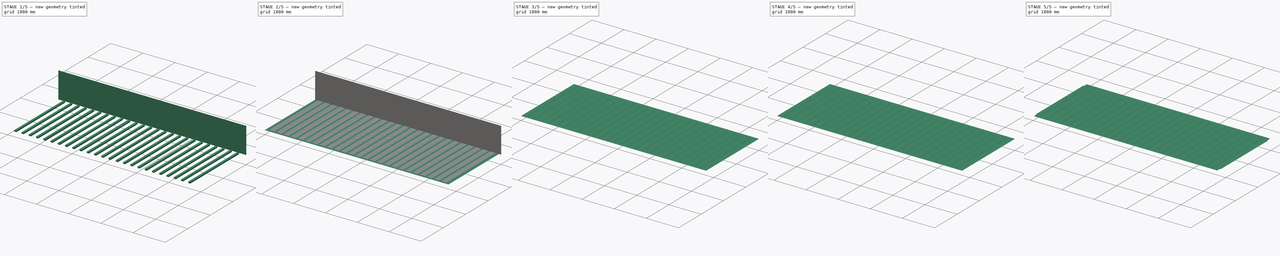
[diagram: build sequence overview — one tinted view per stage of 5, left to right]
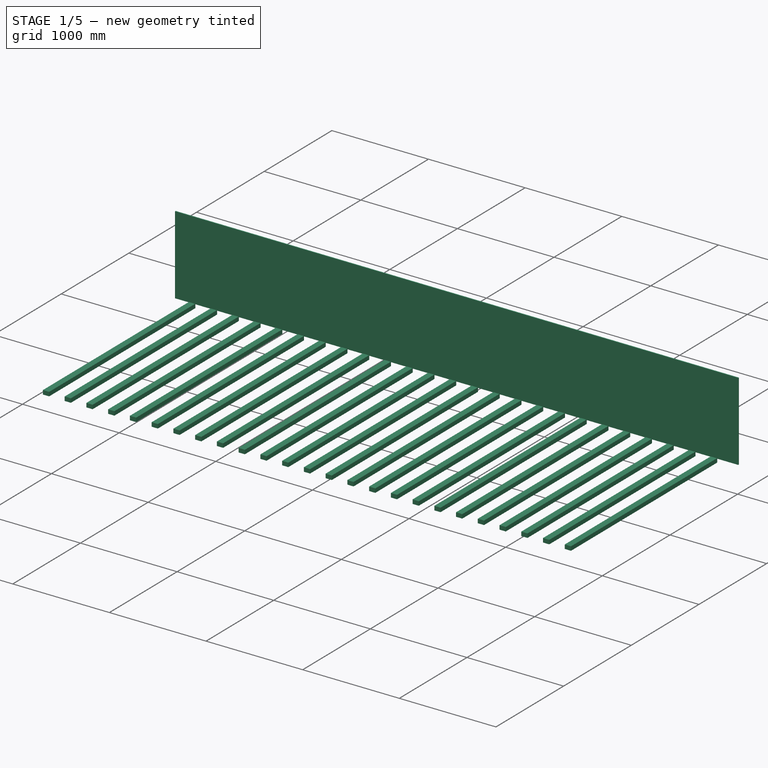
[diagram: stage 1 of 5 — iso view after this stage's code; geometry added in this stage tinted green]
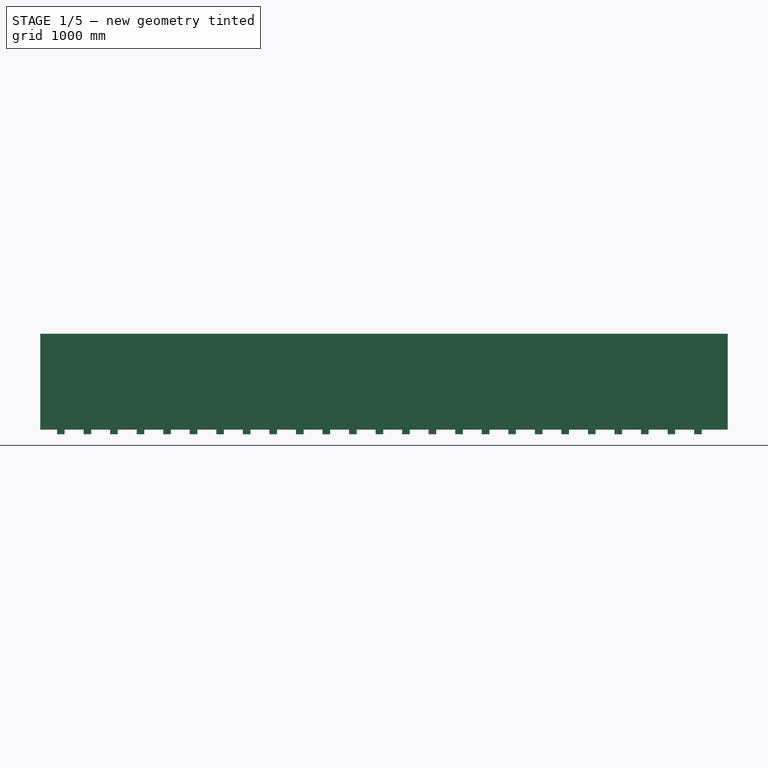
[diagram: stage 1 of 5 — front view after this stage's code; geometry added in this stage tinted green]
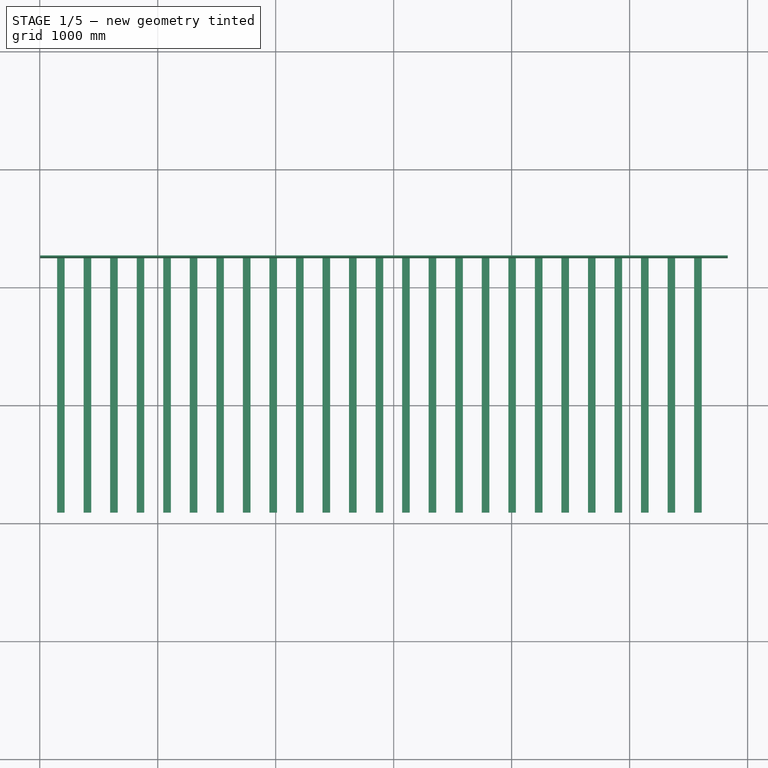
[diagram: stage 1 of 5 — top view after this stage's code; geometry added in this stage tinted green]
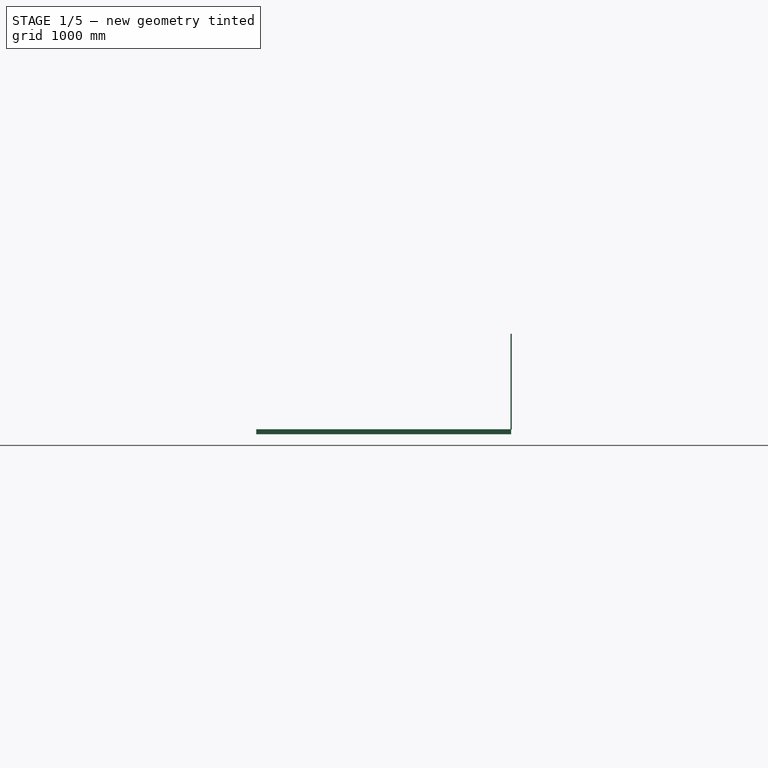
[diagram: stage 1 of 5 — right view after this stage's code; geometry added in this stage tinted green]
FCSTD DOCUMENT  (FreeCAD 0.18R4 (GitTag))
Label: wall_top
License: All rights reserved
LicenseURL: http://en.wikipedia.org/wiki/All_rights_reserved
objects: Sketcher::SketchObject×5, PartDesign::Fillet×5, PartDesign::Pad×4, PartDesign::LinearPattern×2, PartDesign::Draft×2, PartDesign::Body×2, PartDesign::Boolean×1, PartDesign::Pocket×1
note: 27 computed .brp shape members not serialized (recipe doc carries the construction recipe); baked Part::Feature solids carry a one-line shape summary decoded from their .brp

FEATURE [Sketcher::SketchObject] Sketch002
  MapMode = 5
  Support = -> [XY_Plane001]
  sketch-geometry (4):
    g0: LineSegment StartX=146.803 StartY=92.803 StartZ=0 EndX=211.196 EndY=92.803 EndZ=0
    g1: LineSegment StartX=211.196 StartY=92.803 StartZ=0 EndX=211.196 EndY=2253.2 EndZ=0
    g2: LineSegment StartX=211.196 StartY=2253.2 StartZ=0 EndX=146.803 EndY=2253.2 EndZ=0
    g3: LineSegment StartX=146.803 StartY=2253.2 StartZ=0 EndX=146.803 EndY=92.803 EndZ=0
  constraints (12):
    c: Coincident(g0,g1)
    c: Coincident(g1,g2)
    c: Coincident(g2,g3)
    c: Coincident(g3,g0)
    c: Horizontal(g0)
    c: Horizontal(g2)
    c: Vertical(g1)
    c: Vertical(g3)
    c: DistanceY(g1,g1) = 2160.39
    c: DistanceX(g2,g2) = 64.393
    c: DistanceX(g-1,g0) = 146.803
    c: DistanceY(g-1,g0) = 92.803
FEATURE [PartDesign::Pad] Pad002
  Length = 10
  Length2 = 32
  Profile = -> Sketch002
  Refine = true
  Reversed = true
  Type = 4
FEATURE [Sketcher::SketchObject] Sketch003
  ExternalGeometry = -> [Pad002]
  MapMode = 5
  Placement = pos=(0,2253.2,0) rot=(0,0.707107,0.707107;3.14159rad)
  Support = -> [Pad002]
  sketch-geometry (4):
    g0: LineSegment StartX=-5832.28 StartY=820.117 StartZ=0 EndX=-3.74117 EndY=820.117 EndZ=0
    g1: LineSegment StartX=-3.74117 StartY=820.117 StartZ=0 EndX=-3.74117 EndY=6.9485 EndZ=0
    g2: LineSegment StartX=-3.74117 StartY=6.9485 StartZ=0 EndX=-5832.28 EndY=6.9485 EndZ=0
    g3: LineSegment StartX=-5832.28 StartY=6.9485 StartZ=0 EndX=-5832.28 EndY=820.117 EndZ=0
  constraints (8):
    c: Coincident(g0,g1)
    c: Coincident(g1,g2)
    c: Coincident(g2,g3)
    c: Coincident(g3,g0)
    c: Horizontal(g0)
    c: Horizontal(g2)
    c: Vertical(g1)
    c: Vertical(g3)
FEATURE [PartDesign::Pad] Pad003
  BaseFeature = -> Pad002
  Length = 10
  Length2 = 100
  Midplane = true
  Profile = -> Sketch003
  Refine = true
  Type = 0
FEATURE [PartDesign::LinearPattern] LinearPattern001
  BaseFeature = -> Pad003
  Direction = -> X_Axis001
  Length = 5400
  Occurrences = 25
  Originals = -> [Pad002]
  Refine = true
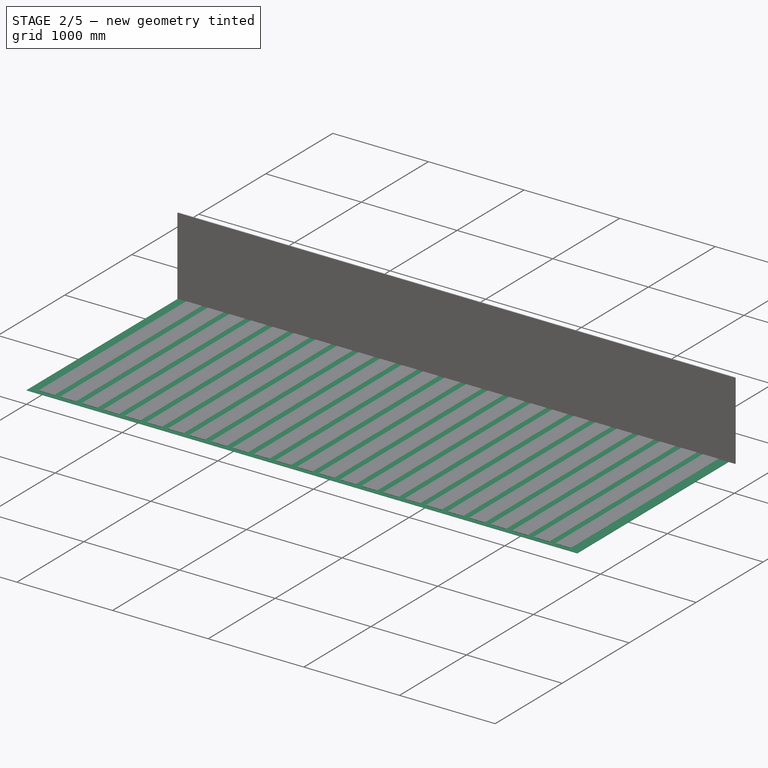
[diagram: stage 2 of 5 — iso view after this stage's code; geometry added in this stage tinted green]
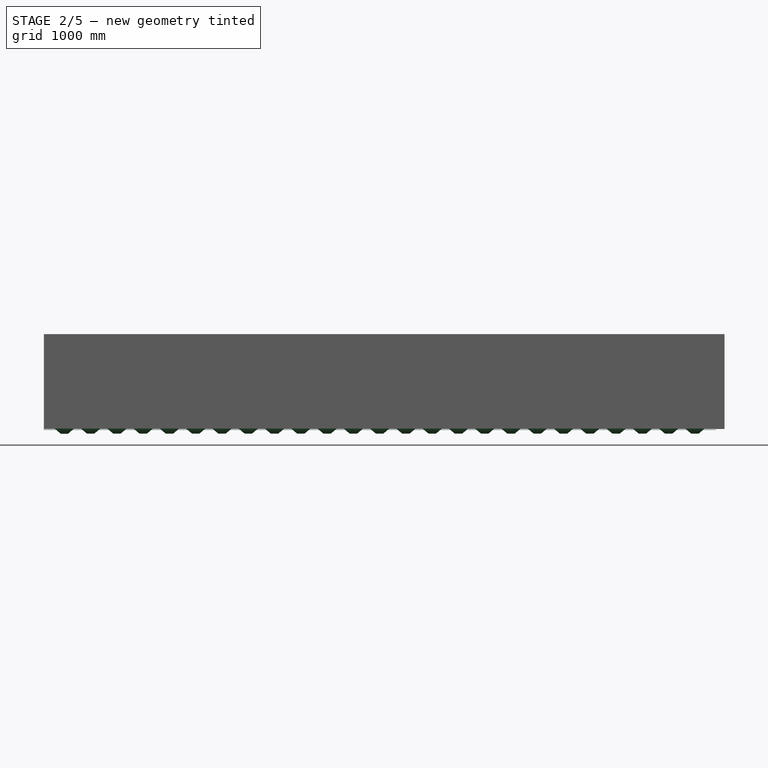
[diagram: stage 2 of 5 — front view after this stage's code; geometry added in this stage tinted green]
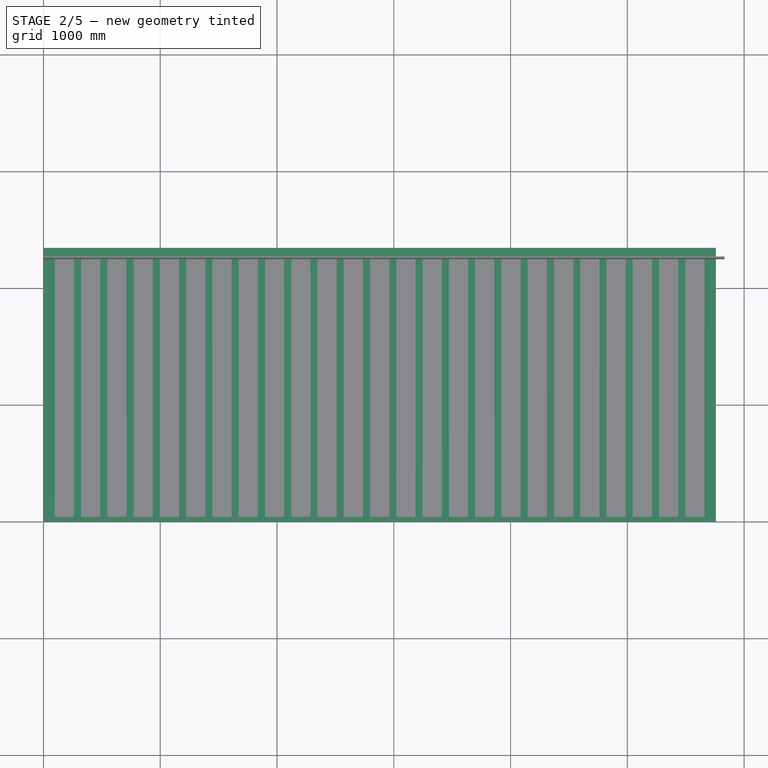
[diagram: stage 2 of 5 — top view after this stage's code; geometry added in this stage tinted green]
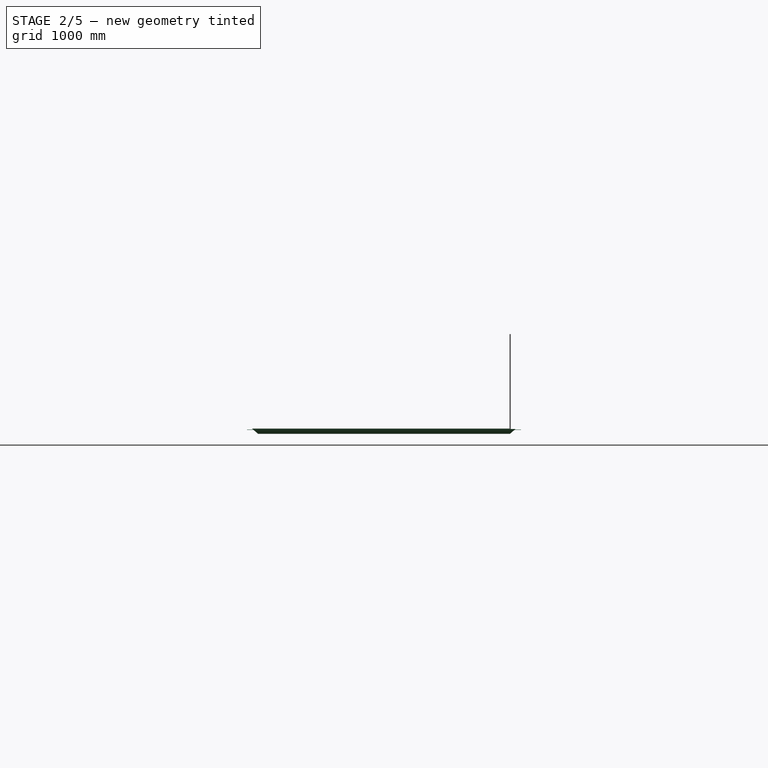
[diagram: stage 2 of 5 — right view after this stage's code; geometry added in this stage tinted green]
FEATURE [Sketcher::SketchObject] Sketch
  MapMode = 5
  Support = -> [XY_Plane]
  sketch-geometry (4):
    g0: LineSegment StartX=0 StartY=0 StartZ=0 EndX=5758 EndY=0 EndZ=0
    g1: LineSegment StartX=5758 StartY=0 StartZ=0 EndX=5758 EndY=2346 EndZ=0
    g2: LineSegment StartX=5758 StartY=2346 StartZ=0 EndX=0 EndY=2346 EndZ=0
    g3: LineSegment StartX=0 StartY=2346 StartZ=0 EndX=0 EndY=0 EndZ=0
  constraints (11):
    c: Coincident(g0,g1)
    c: Coincident(g1,g2)
    c: Coincident(g2,g3)
    c: Coincident(g3,g0)
    c: Horizontal(g0)
    c: Horizontal(g2)
    c: Vertical(g1)
    c: Vertical(g3)
    c: Coincident(g0,g-1)
    c: DistanceX(g2,g2) = 5758
    c: DistanceY(g3,g3) = 2346
FEATURE [PartDesign::Pad] Pad
  Length = 3
  Length2 = 100
  Profile = -> Sketch
  Refine = true
  Type = 0
FEATURE [Sketcher::SketchObject] Sketch001
  ExternalGeometry = -> [Pad]
  MapMode = 5
  Placement = pos=(0,0,0) rot=(1,0,0;3.14159rad)
  Support = -> [Pad]
  sketch-geometry (4):
    g0: LineSegment StartX=145.711 StartY=-91.711 StartZ=0 EndX=212.288 EndY=-91.711 EndZ=0
    g1: LineSegment StartX=212.288 StartY=-91.711 StartZ=0 EndX=212.288 EndY=-2254.29 EndZ=0
    g2: LineSegment StartX=212.288 StartY=-2254.29 StartZ=0 EndX=145.711 EndY=-2254.29 EndZ=0
    g3: LineSegment StartX=145.711 StartY=-2254.29 StartZ=0 EndX=145.711 EndY=-91.711 EndZ=0
  constraints (12):
    c: Coincident(g0,g1)
    c: Coincident(g1,g2)
    c: Coincident(g2,g3)
    c: Coincident(g3,g0)
    c: Horizontal(g0)
    c: Horizontal(g2)
    c: Vertical(g1)
    c: Vertical(g3)
    c: DistanceX(g0,g0) = 66.577
    c: DistanceY(g1,g1) = 2162.58
    c: DistanceX(g-1,g0) = 145.711
    c: DistanceY(g0,g-1) = 91.711
FEATURE [PartDesign::Pad] Pad001
  BaseFeature = -> Pad
  Length = 35
  Length2 = 100
  Profile = -> Sketch001
  Refine = true
  Type = 0
FEATURE [PartDesign::Draft] Draft001
  Angle = 50
  Base = -> LinearPattern001 [Face2,Face8,Face10,Face84,Face82,Face85,Face79,Face86,Face76,Face87,Face73,Face88,Face70,Face89,Face67,Face90,Face64,Face91,Face61,Face92,Face58,Face93,Face55,Face94,Face52,Face95,Face49,Face96,Face46,Face97,Face43,Face98,Face40,Face99,Face37,Face100,Face34,Face101,Face31,Face102,+60 more]
  BaseFeature = -> LinearPattern001
  NeutralPlane = -> LinearPattern001 [Face4]
  PullDirection = -> LinearPattern001 [Edge1]
  Reversed = true
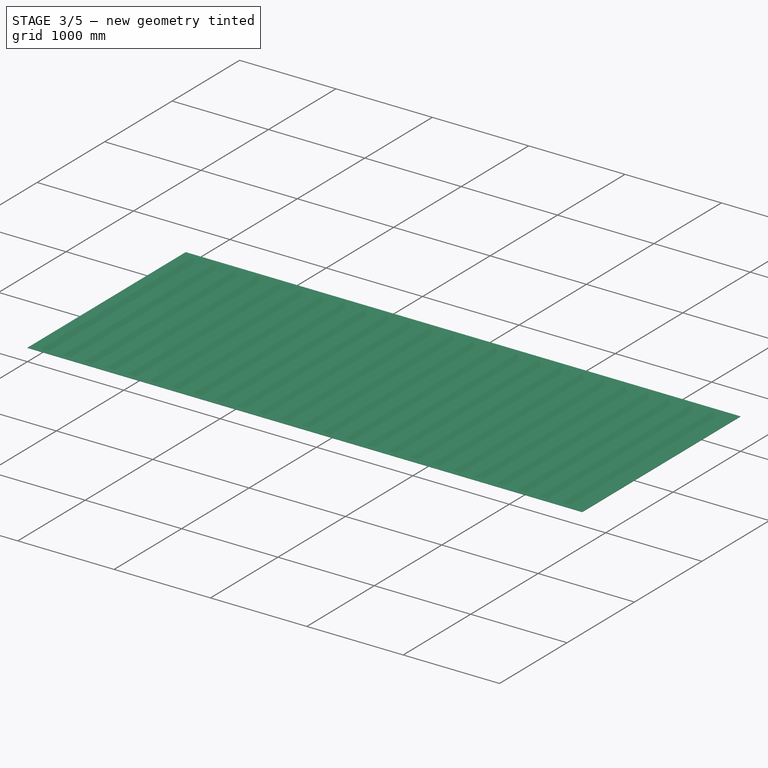
[diagram: stage 3 of 5 — iso view after this stage's code; geometry added in this stage tinted green]
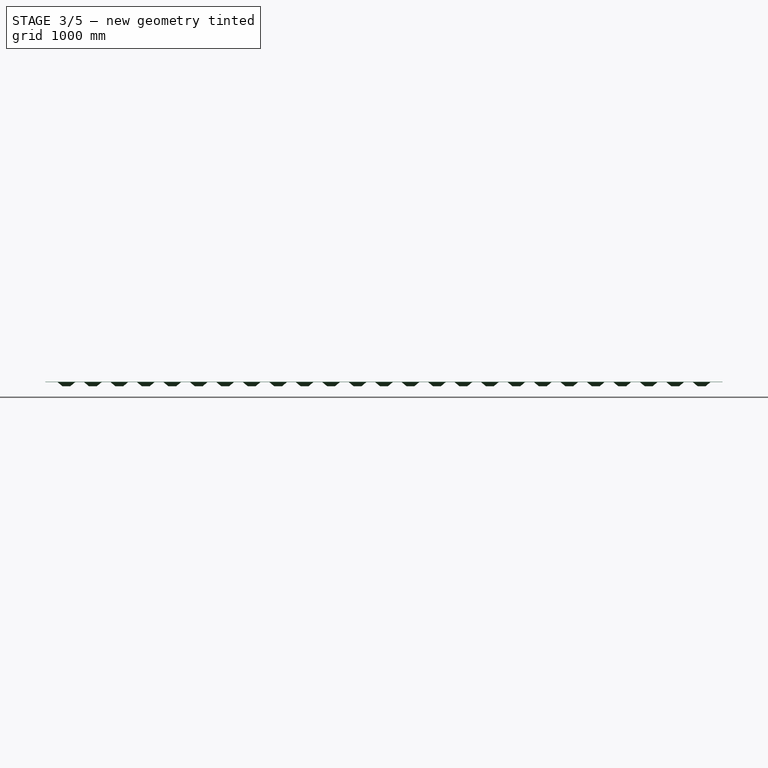
[diagram: stage 3 of 5 — front view after this stage's code; geometry added in this stage tinted green]
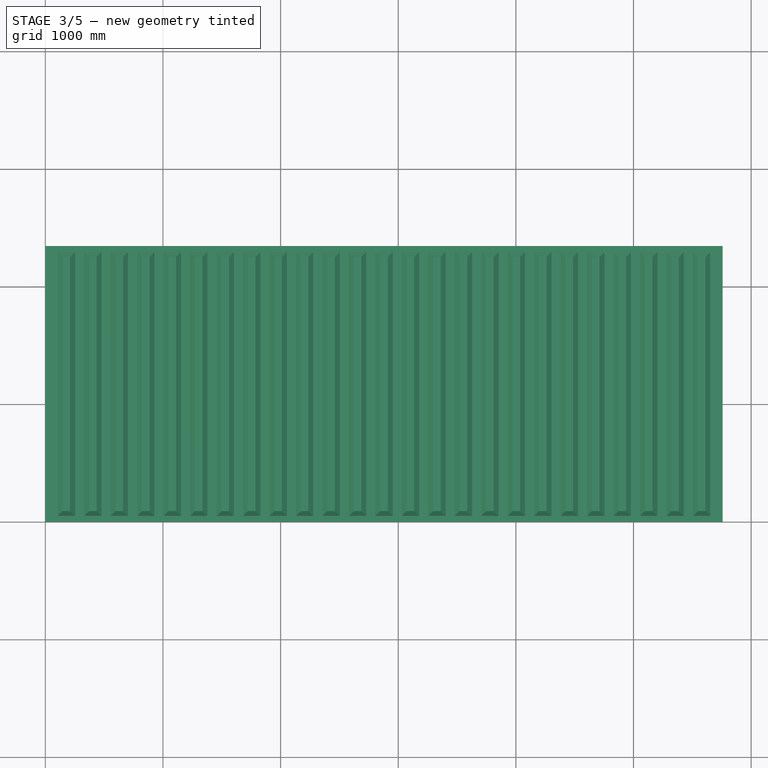
[diagram: stage 3 of 5 — top view after this stage's code; geometry added in this stage tinted green]
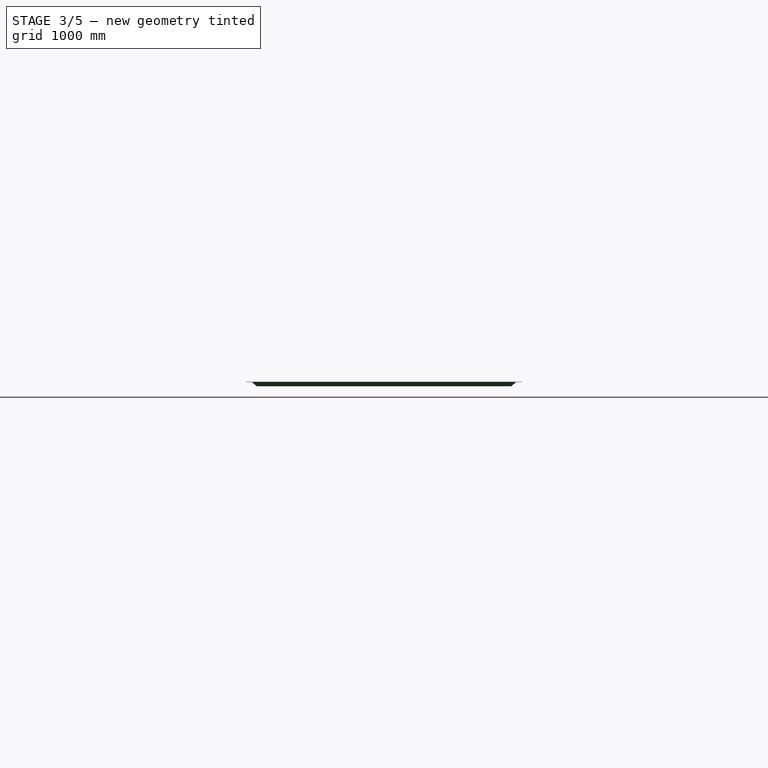
[diagram: stage 3 of 5 — right view after this stage's code; geometry added in this stage tinted green]
FEATURE [PartDesign::LinearPattern] LinearPattern
  BaseFeature = -> Pad001
  Direction = -> X_Axis
  Length = 5400
  Occurrences = 25
  Originals = -> [Pad001]
  Refine = true
FEATURE [PartDesign::Draft] Draft
  Angle = 50
  Base = -> LinearPattern [Face96,Face98,Face100,Face102,Face104,Face106,Face88,Face90,Face92,Face94,Face48,Face50,Face52,Face54,Face56,Face58,Face28,Face30,Face32,Face34,Face36,Face38,Face40,Face42,Face44,Face46,Face24,Face26,Face16,Face18,Face20,Face22,Face12,Face14,Face8,Face10,Face64,Face66,Face60,Face62,+60 more]
  BaseFeature = -> LinearPattern
  NeutralPlane = -> LinearPattern [Face109]
  PullDirection = -> LinearPattern [Edge137]
FEATURE [PartDesign::Body] Body001  label="cut"
  Group = -> [Sketch002,Pad002,Sketch003,Pad003,LinearPattern001,Draft001]
  Origin = -> Origin001
  Tip = -> Draft001
FEATURE [PartDesign::Boolean] Boolean
  BaseFeature = -> Draft
  Group = -> [Body001]
  Refine = true
  Type = 1
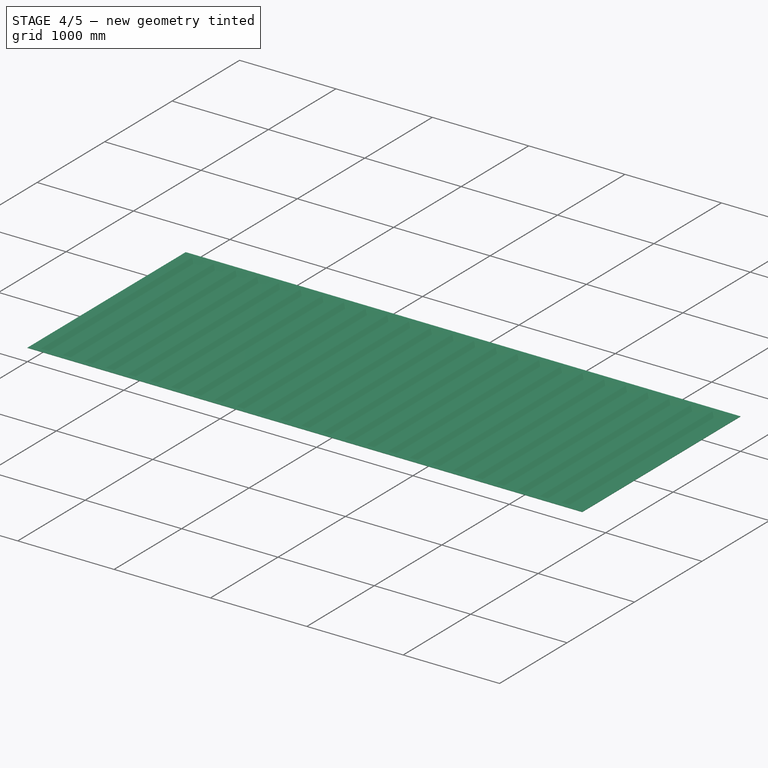
[diagram: stage 4 of 5 — iso view after this stage's code; geometry added in this stage tinted green]
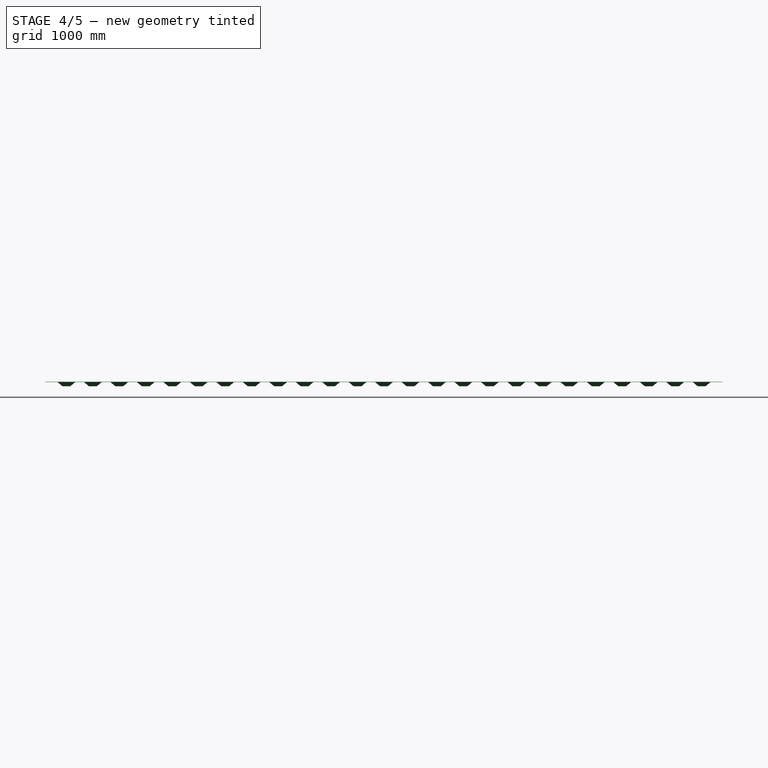
[diagram: stage 4 of 5 — front view after this stage's code; geometry added in this stage tinted green]
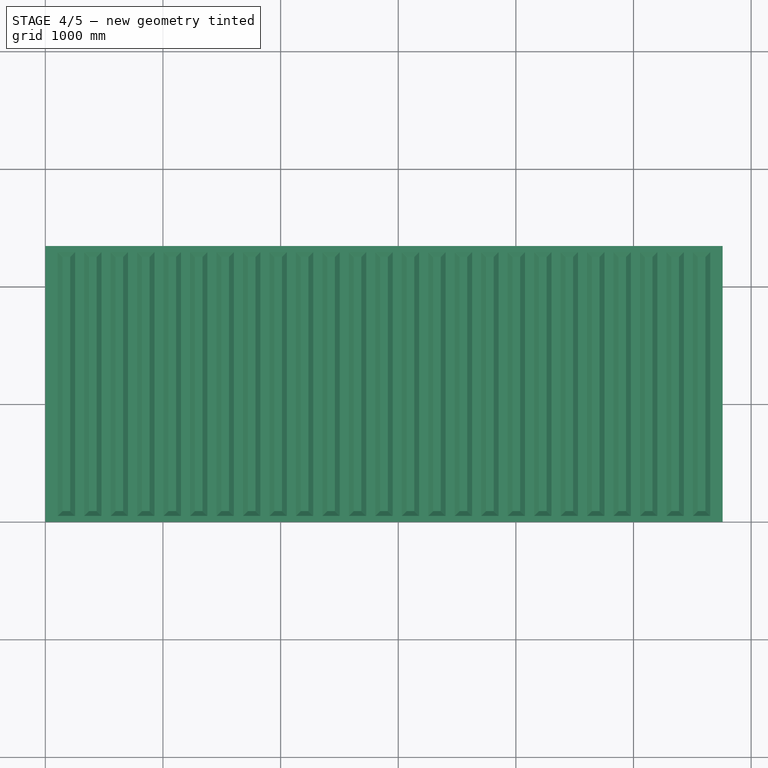
[diagram: stage 4 of 5 — top view after this stage's code; geometry added in this stage tinted green]
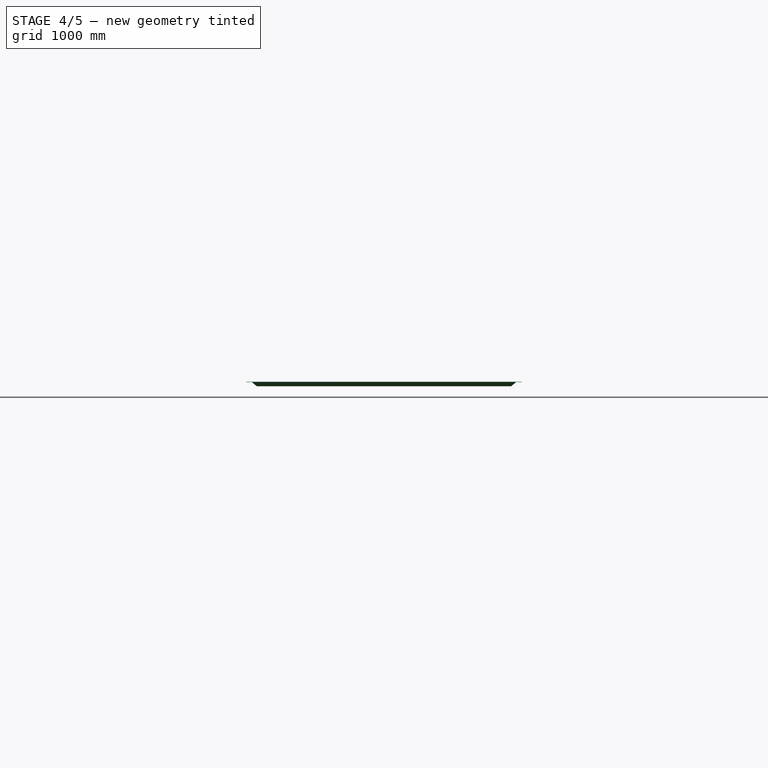
[diagram: stage 4 of 5 — right view after this stage's code; geometry added in this stage tinted green]
FEATURE [PartDesign::Fillet] Fillet
  Base = -> Boolean [Edge585,Edge584,Edge586,Edge588,Edge587,Edge595,Edge596,Edge594,Edge593,Edge592,Edge473,Edge474,Edge472,Edge476,Edge475,Edge483,Edge484,Edge482,Edge480,Edge481,Edge451,Edge452,Edge450,Edge448,Edge449,Edge459,Edge460,Edge458,Edge456,Edge457,Edge467,Edge468,Edge466,Edge464,Edge465,Edge435,Edge436,Edge434,Edge432,Edge433,+160 more]
  BaseFeature = -> Boolean
  Radius = 3
FEATURE [PartDesign::Fillet] Fillet001
  Base = -> Fillet [Edge1297,Edge1299,Edge1298,Edge1303,Edge1301,Edge1305,Edge1307,Edge1306,Edge1311,Edge1309,Edge1289,Edge1291,Edge1293,Edge1295,Edge1290,Edge1281,Edge1283,Edge1282,Edge1287,Edge1285,Edge1149,Edge1145,Edge1146,Edge1147,Edge1151,Edge1153,Edge1157,Edge1155,Edge1159,Edge1154,Edge1169,Edge1171,Edge1170,Edge1175,Edge1173,Edge1161,Edge1163,Edge1167,Edge1165,Edge1162,+160 more]
  BaseFeature = -> Fillet
  Radius = 6
FEATURE [PartDesign::Fillet] Fillet002
  Base = -> Fillet001 [Edge196,Edge194,Edge192,Edge195,Edge193,Edge200,Edge202,Edge204,Edge203,Edge201,Edge184,Edge186,Edge188,Edge187,Edge185,Edge176,Edge178,Edge180,Edge179,Edge177,Edge40,Edge42,Edge44,Edge43,Edge41,Edge48,Edge50,Edge52,Edge51,Edge49,Edge64,Edge66,Edge68,Edge67,Edge65,Edge56,Edge58,Edge60,Edge59,Edge57,+160 more]
  BaseFeature = -> Fillet001
  Radius = 3
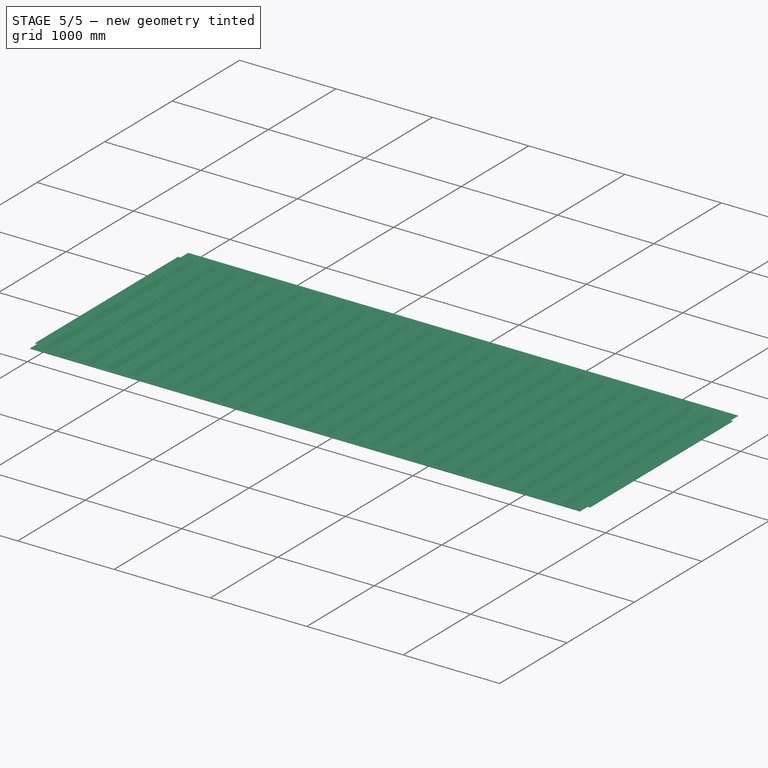
[diagram: stage 5 of 5 — iso view after this stage's code; geometry added in this stage tinted green]
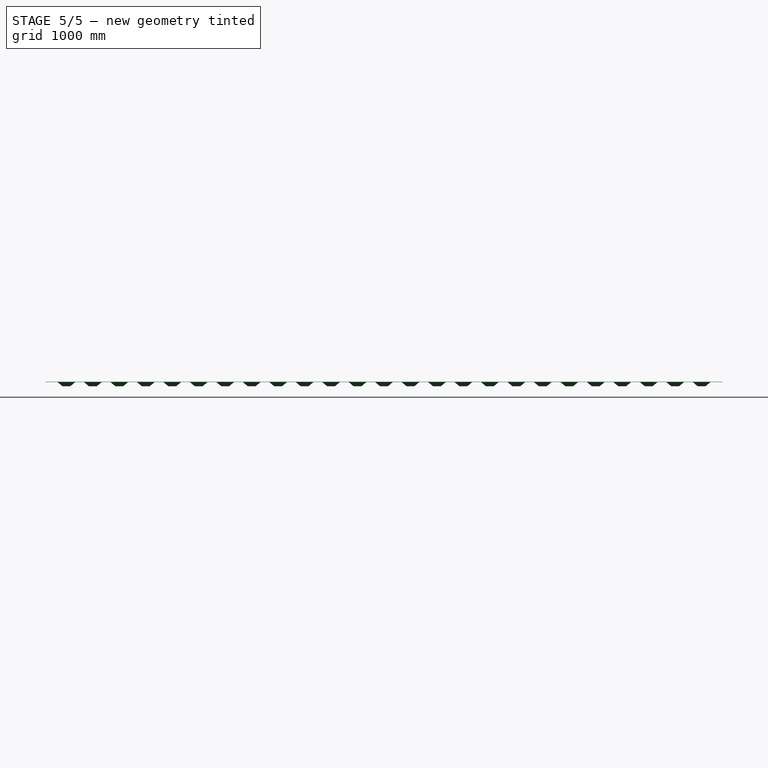
[diagram: stage 5 of 5 — front view after this stage's code; geometry added in this stage tinted green]
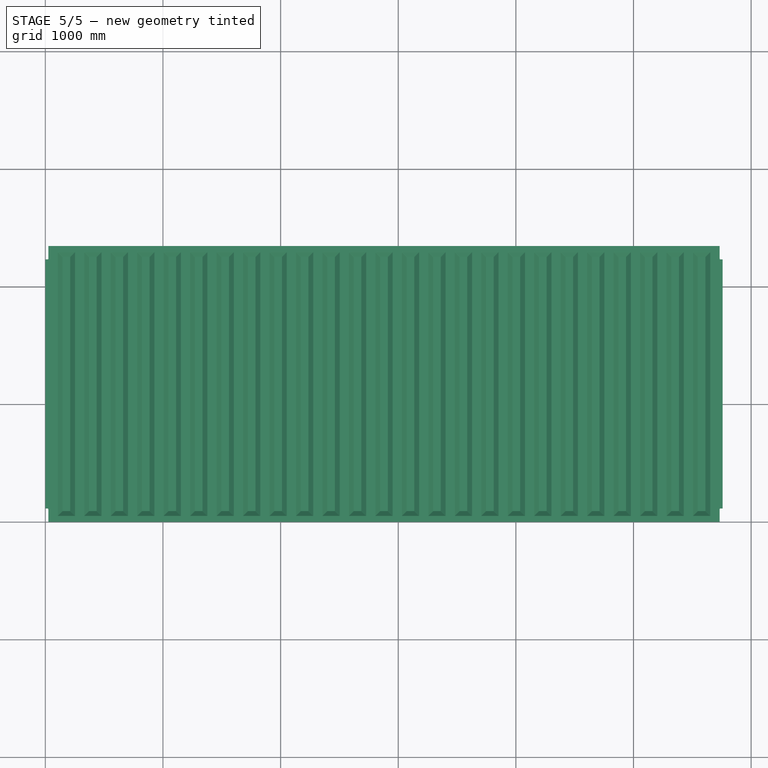
[diagram: stage 5 of 5 — top view after this stage's code; geometry added in this stage tinted green]
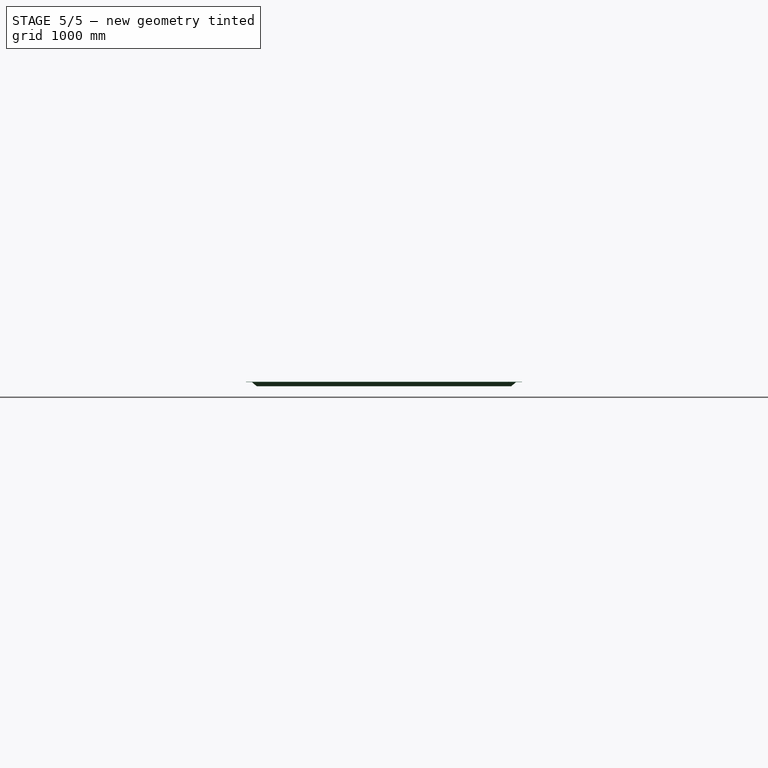
[diagram: stage 5 of 5 — right view after this stage's code; geometry added in this stage tinted green]
FEATURE [PartDesign::Fillet] Fillet003
  Base = -> Fillet002 [Edge804,Edge803,Edge801,Edge802,Edge800,Edge812,Edge811,Edge809,Edge810,Edge808,Edge691,Edge689,Edge692,Edge690,Edge688,Edge699,Edge697,Edge700,Edge696,Edge698,Edge665,Edge667,Edge668,Edge666,Edge664,Edge673,Edge675,Edge676,Edge674,Edge672,Edge681,Edge683,Edge684,Edge682,Edge680,Edge649,Edge651,Edge652,Edge650,Edge648,+160 more]
  BaseFeature = -> Fillet002
  Radius = 6
FEATURE [Sketcher::SketchObject] Sketch004
  ExternalGeometry = -> [Fillet003]
  MapMode = 5
  Placement = pos=(0,0,3) rot=(0,0,1;0rad)
  Support = -> [Fillet003]
  sketch-geometry (16):
    g0: LineSegment StartX=5758 StartY=0 StartZ=0 EndX=5732.5 EndY=0 EndZ=0
    g1: LineSegment StartX=5732.5 StartY=0 StartZ=0 EndX=5732.5 EndY=114 EndZ=0
    g2: LineSegment StartX=5732.5 StartY=114 StartZ=0 EndX=5758 EndY=114 EndZ=0
    g3: LineSegment StartX=5758 StartY=114 StartZ=0 EndX=5758 EndY=0 EndZ=0
    g4: LineSegment StartX=5758 StartY=2346 StartZ=0 EndX=5732.5 EndY=2346 EndZ=0
    g5: LineSegment StartX=5732.5 StartY=2346 StartZ=0 EndX=5732.5 EndY=2232 EndZ=0
    g6: LineSegment StartX=5732.5 StartY=2232 StartZ=0 EndX=5758 EndY=2232 EndZ=0
    g7: LineSegment StartX=5758 StartY=2232 StartZ=0 EndX=5758 EndY=2346 EndZ=0
    g8: LineSegment StartX=0 StartY=2346 StartZ=0 EndX=25.5 EndY=2346 EndZ=0
    g9: LineSegment StartX=25.5 StartY=2346 StartZ=0 EndX=25.5 EndY=2232 EndZ=0
    g10: LineSegment StartX=25.5 StartY=2232 StartZ=0 EndX=0 EndY=2232 EndZ=0
    g11: LineSegment StartX=0 StartY=2232 StartZ=0 EndX=0 EndY=2346 EndZ=0
    g12: LineSegment StartX=0 StartY=0 StartZ=0 EndX=25.5 EndY=0 EndZ=0
    g13: LineSegment StartX=25.5 StartY=0 StartZ=0 EndX=25.5 EndY=114 EndZ=0
    g14: LineSegment StartX=25.5 StartY=114 StartZ=0 EndX=0 EndY=114 EndZ=0
    g15: LineSegment StartX=0 StartY=114 StartZ=0 EndX=0 EndY=0 EndZ=0
  constraints (44):
    c: Coincident(g0,g1)
    c: Coincident(g1,g2)
    c: Coincident(g2,g3)
    c: Coincident(g3,g0)
    c: Horizontal(g0)
    c: Horizontal(g2)
    c: Vertical(g1)
    c: Vertical(g3)
    c: Coincident(g0,g-4)
    c: DistanceY(g1,g1) = 114
    c: DistanceX(g2,g2) = 25.5
    c: Coincident(g4,g5)
    c: Coincident(g5,g6)
    c: Coincident(g6,g7)
    c: Coincident(g7,g4)
    c: Horizontal(g4)
    c: Horizontal(g6)
    c: Vertical(g5)
    c: Vertical(g7)
    c: Coincident(g4,g-3)
    c: DistanceY(g5,g5) = 114
    c: DistanceX(g6,g6) = 25.5
    c: Coincident(g8,g9)
    c: Coincident(g9,g10)
    c: Coincident(g10,g11)
    c: Coincident(g11,g8)
    c: Horizontal(g8)
    c: Horizontal(g10)
    c: Vertical(g9)
    c: Vertical(g11)
    c: Coincident(g8,g-3)
    c: DistanceY(g11,g11) = 114
    c: DistanceX(g10,g10) = 25.5
    c: Coincident(g12,g13)
    c: Coincident(g13,g14)
    c: Coincident(g14,g15)
    c: Coincident(g15,g12)
    c: Horizontal(g12)
    c: Horizontal(g14)
    c: Vertical(g13)
    c: Vertical(g15)
    c: Coincident(g12,g-1)
    c: DistanceX(g14,g14) = 25.5
    c: DistanceY(g13,g13) = 114
FEATURE [PartDesign::Pocket] Pocket
  BaseFeature = -> Fillet003
  Length = 5
  Length2 = 100
  Profile = -> Sketch004
  Refine = true
  Type = 0
FEATURE [PartDesign::Fillet] Fillet004
  Base = -> Pocket [Edge233,Edge226,Edge221,Edge213]
  BaseFeature = -> Pocket
  Radius = 6
FEATURE [PartDesign::Body] Body  label="base"
  Group = -> [Sketch,Pad,Sketch001,Pad001,LinearPattern,Draft,Boolean,Fillet,Fillet001,Fillet002,Fillet003,Sketch004,Pocket,Fillet004]
  Origin = -> Origin
  Tip = -> Fillet004
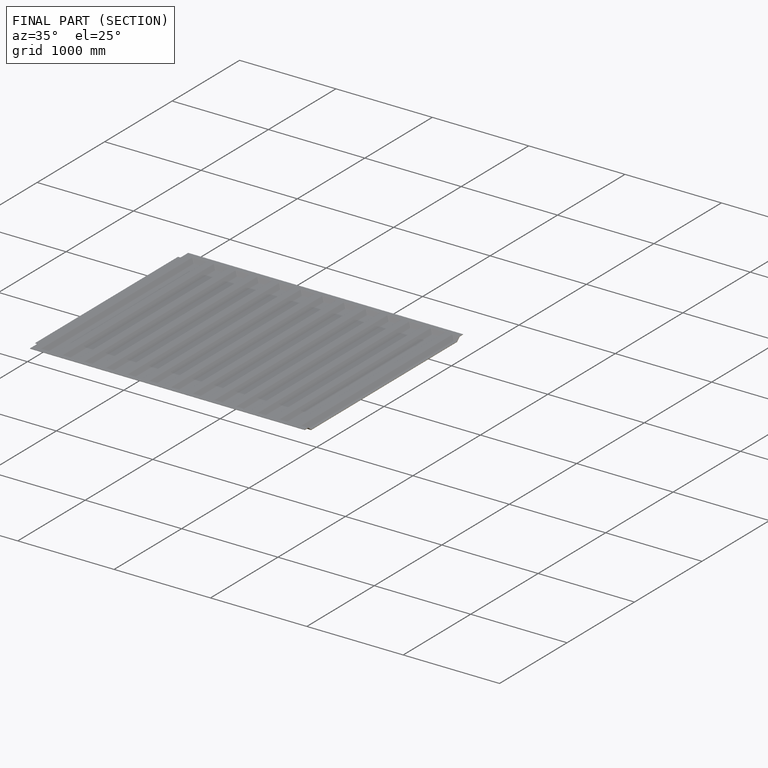
[diagram: finished part — half-section view (interior)]
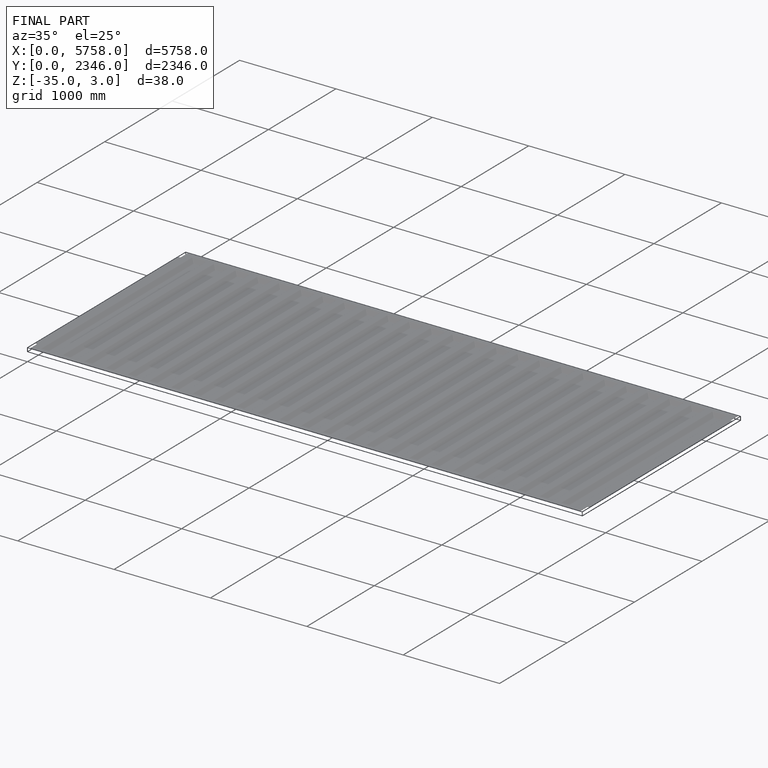
[diagram: finished part — iso view with bounding-box wireframe]
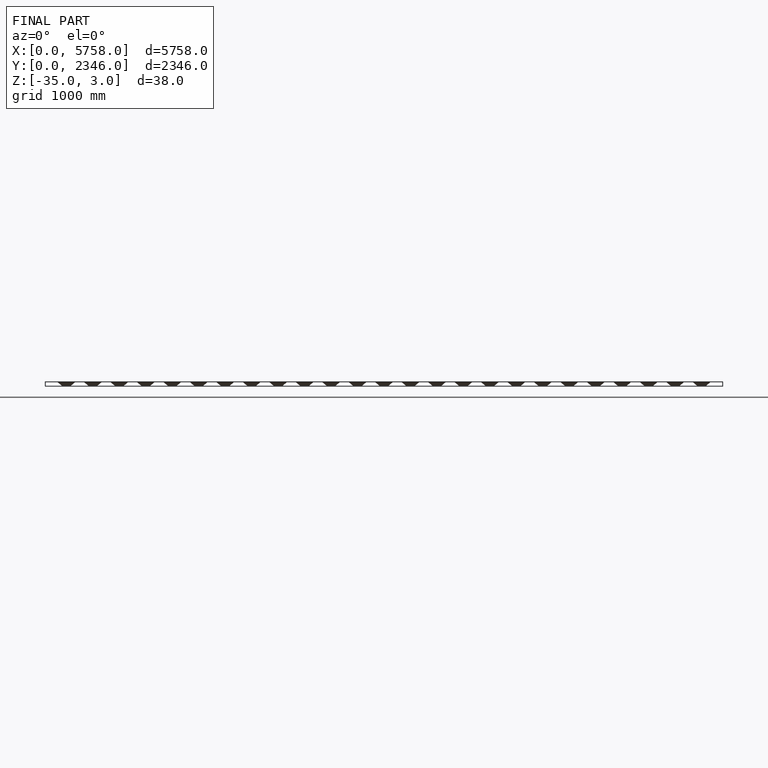
[diagram: finished part — front view with bounding-box wireframe]
